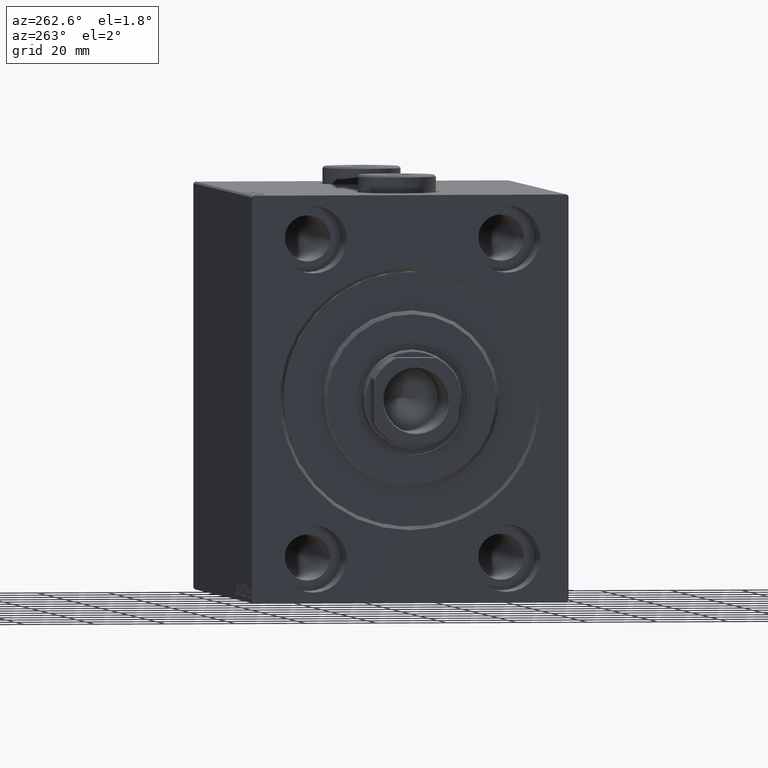
[diagram: clean part render]
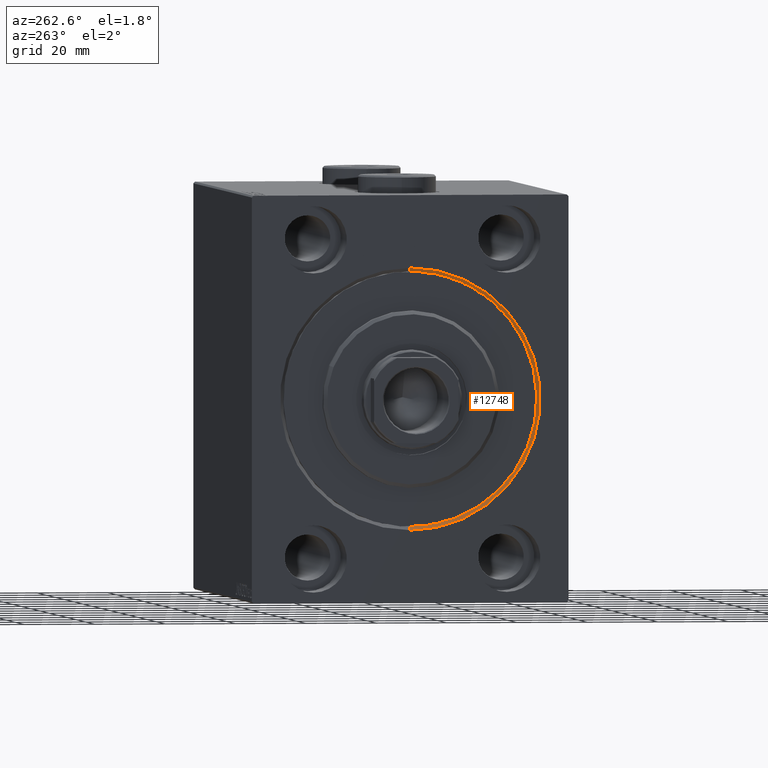
[diagram: same view with one face highlighted and labeled with its STEP entity id]
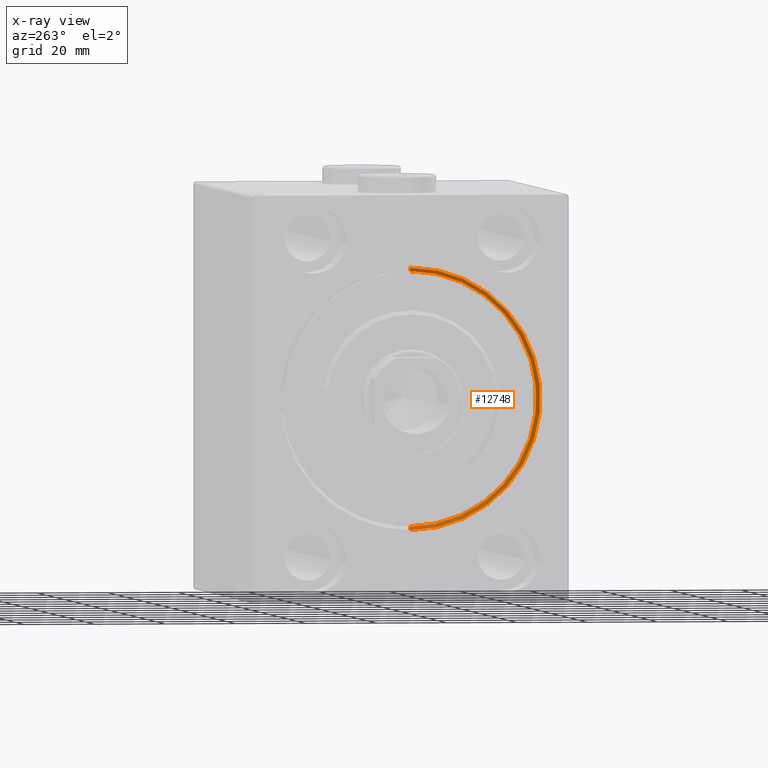
[diagram: x-ray of the same camera — body ghosted, the highlighted face saturated]
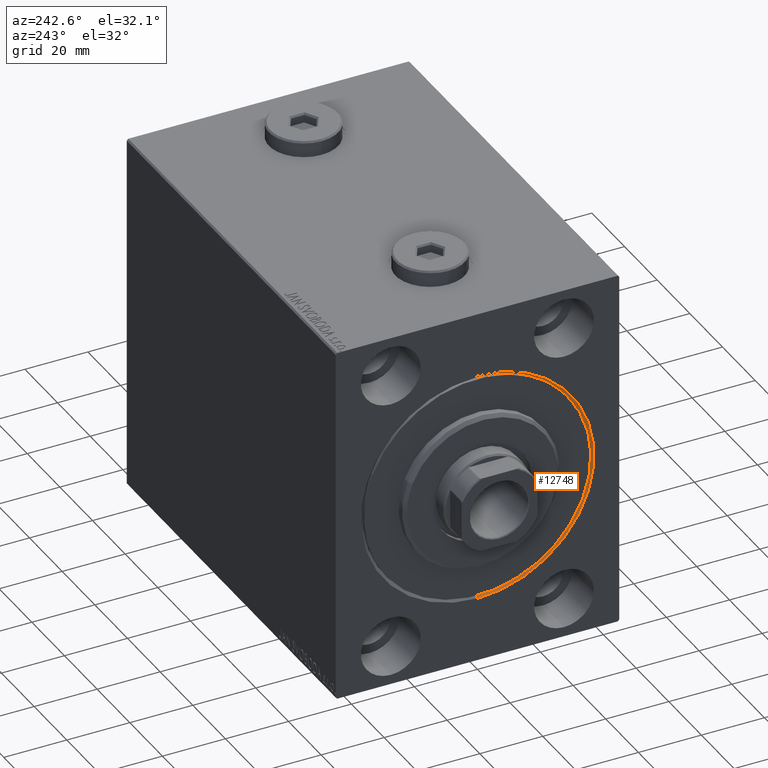
[diagram: same view with one face highlighted and labeled with its STEP entity id]
A machine part, auxiliary view. The second image highlights one B-rep face of the part: STEP entity #12748.
The next image is the same camera in x-ray: the body ghosted, the highlighted face saturated — about 0% of this face is hidden behind the body in this view.
A second angle (auxiliary view) of the same face is appended — the face is thin or edge-on in the first view.
In plain terms, the highlighted conical surface has half-angle 45 deg.
Its self-contained STEP definition (entity closure, byte-faithful):
#1309 = DIRECTION ( 'NONE',  ( -0.7071067811865524577, 8.659560562354873694E-17, -0.7071067811865426878 ) ) ;
#1530 = DIRECTION ( 'NONE',  ( -0.7071067811865524577, 0.000000000000000000, 0.7071067811865426878 ) ) ;
#4356 = VERTEX_POINT ( 'NONE', #4514 ) ;
#4514 = CARTESIAN_POINT ( 'NONE',  ( 0.000000000000000000, 4.531193156845207581E-15, -37.00000000000000711 ) ) ;
#5516 = CARTESIAN_POINT ( 'NONE',  ( 1.000000000000021760, 4.408728476930470856E-15, -36.00000000000000000 ) ) ;
#5525 = VECTOR ( 'NONE', #1309, 1000.000000000000000 ) ;
#6447 = CARTESIAN_POINT ( 'NONE',  ( 0.000000000000000000, 0.000000000000000000, 37.00000000000000711 ) ) ;
#7261 = EDGE_LOOP ( 'NONE', ( #13378, #17529, #20232, #23217 ) ) ;
#9864 = DIRECTION ( 'NONE',  ( 0.000000000000000000, 0.000000000000000000, -1.000000000000000000 ) ) ;
#10507 = CIRCLE ( 'NONE', #43418, 36.00000000000000000 ) ;
#11633 = LINE ( 'NONE', #32905, #5525 ) ;
#11664 = EDGE_CURVE ( 'NONE', #22356, #30325, #10507, .T. ) ;
#12394 = CARTESIAN_POINT ( 'NONE',  ( 0.000000000000000000, 0.000000000000000000, 0.000000000000000000 ) ) ;
#12748 = ADVANCED_FACE ( 'NONE', ( #28884 ), #31752, .F. ) ;
#13378 = ORIENTED_EDGE ( 'NONE', *, *, #11664, .F. ) ;
#13755 = DIRECTION ( 'NONE',  ( -1.000000000000000000, 0.000000000000000000, 0.000000000000000000 ) ) ;
#14797 = VERTEX_POINT ( 'NONE', #6447 ) ;
#15159 = AXIS2_PLACEMENT_3D ( 'NONE', #12394, #40338, #16068 ) ;
#16068 = DIRECTION ( 'NONE',  ( 0.000000000000000000, 0.000000000000000000, -1.000000000000000000 ) ) ;
#17529 = ORIENTED_EDGE ( 'NONE', *, *, #19598, .T. ) ;
#19598 = EDGE_CURVE ( 'NONE', #22356, #4356, #11633, .T. ) ;
#19712 = EDGE_CURVE ( 'NONE', #30325, #14797, #22397, .T. ) ;
#20232 = ORIENTED_EDGE ( 'NONE', *, *, #24833, .F. ) ;
#21580 = CARTESIAN_POINT ( 'NONE',  ( 1.000000000000021760, 0.000000000000000000, 0.000000000000000000 ) ) ;
#22356 = VERTEX_POINT ( 'NONE', #5516 ) ;
#22397 = LINE ( 'NONE', #36353, #37674 ) ;
#23217 = ORIENTED_EDGE ( 'NONE', *, *, #19712, .F. ) ;
#23832 = CARTESIAN_POINT ( 'NONE',  ( 1.000000000000021760, 0.000000000000000000, 0.000000000000000000 ) ) ;
#24833 = EDGE_CURVE ( 'NONE', #14797, #4356, #41470, .T. ) ;
#28884 = FACE_OUTER_BOUND ( 'NONE', #7261, .T. ) ;
#30325 = VERTEX_POINT ( 'NONE', #34558 ) ;
#31752 = CONICAL_SURFACE ( 'NONE', #32475, 36.00000000000000000, 0.7853981633974415066 ) ;
#32475 = AXIS2_PLACEMENT_3D ( 'NONE', #21580, #39890, #43100 ) ;
#32905 = CARTESIAN_POINT ( 'NONE',  ( 1.000000000000021760, 4.408728476930470856E-15, -36.00000000000000000 ) ) ;
#34558 = CARTESIAN_POINT ( 'NONE',  ( 1.000000000000021760, 0.000000000000000000, 36.00000000000000000 ) ) ;
#36353 = CARTESIAN_POINT ( 'NONE',  ( 1.000000000000021760, 0.000000000000000000, 36.00000000000000000 ) ) ;
#37674 = VECTOR ( 'NONE', #1530, 1000.000000000000000 ) ;
#39890 = DIRECTION ( 'NONE',  ( -1.000000000000000000, 0.000000000000000000, 0.000000000000000000 ) ) ;
#40338 = DIRECTION ( 'NONE',  ( 1.000000000000000000, 0.000000000000000000, 0.000000000000000000 ) ) ;
#41470 = CIRCLE ( 'NONE', #15159, 37.00000000000000711 ) ;
#43100 = DIRECTION ( 'NONE',  ( 0.000000000000000000, 0.000000000000000000, 1.000000000000000000 ) ) ;
#43418 = AXIS2_PLACEMENT_3D ( 'NONE', #23832, #13755, #9864 ) ;